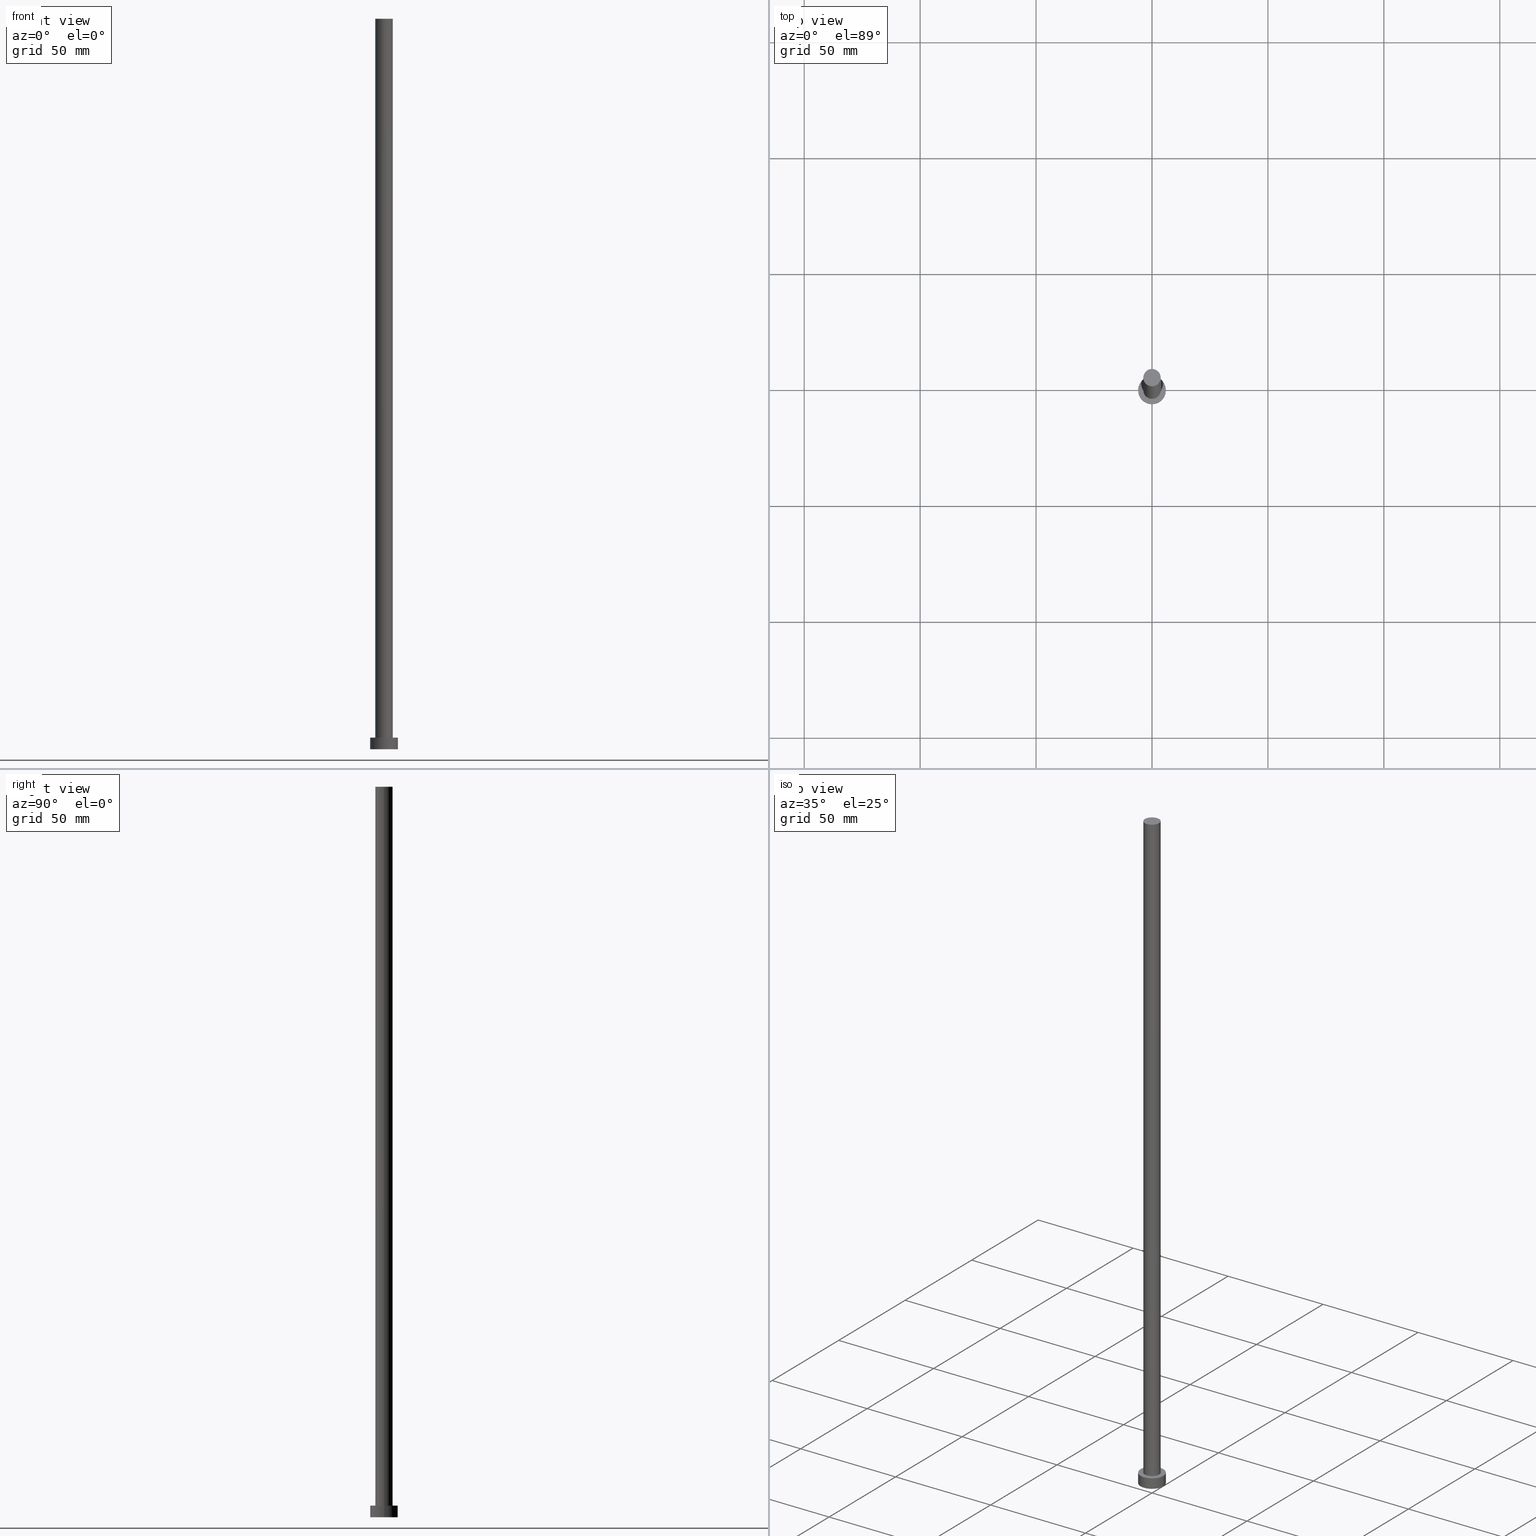
[diagram: canonical four-view strip — front | top / right | iso, engineering-drawing reading convention]
A machine part, canonical four-view strip (front | top / right | iso — engineering-drawing reading convention). The complete STEP part file that produces these views, byte-faithful:
ISO-10303-21;
HEADER;
FILE_DESCRIPTION (( 'STEP AP203' ),
    '1' );
FILE_NAME ('ec3e.STEP',
    '2023-02-12T11:56:48',
    ( '' ),
    ( '' ),
    'SwSTEP 2.0',
    'SolidWorks 2019',
    '' );
FILE_SCHEMA (( 'CONFIG_CONTROL_DESIGN' ));
ENDSEC;

DATA;
#1 = ORIENTED_EDGE ( 'NONE', *, *, #79, .F. ) ;
#2 = AXIS2_PLACEMENT_3D ( 'NONE', #172, #11, #174 ) ;
#3 = ORIENTED_EDGE ( 'NONE', *, *, #195, .F. ) ;
#4 = ORIENTED_EDGE ( 'NONE', *, *, #26, .T. ) ;
#5 = PERSON_AND_ORGANIZATION_ROLE ( 'classification_officer' ) ;
#6 = EDGE_LOOP ( 'NONE', ( #242, #78, #237, #182 ) ) ;
#7 = CC_DESIGN_APPROVAL ( #193, ( #67 ) ) ;
#8 = CALENDAR_DATE ( 2023, 12, 2 ) ;
#9 = CARTESIAN_POINT ( 'NONE',  ( -6.000000000000000888, 0.000000000000000000, 5.000000000000000000 ) ) ;
#10 = DATE_AND_TIME ( #8, #12 ) ;
#11 = DIRECTION ( 'NONE',  ( 0.000000000000000000, 0.000000000000000000, 1.000000000000000000 ) ) ;
#12 = LOCAL_TIME ( 12, 56, 48.00000000000000000, #111 ) ;
#13 = FACE_OUTER_BOUND ( 'NONE', #73, .T. ) ;
#14 = CC_DESIGN_PERSON_AND_ORGANIZATION_ASSIGNMENT ( #25, #202, ( #67 ) ) ;
#15 = DIRECTION ( 'NONE',  ( 0.000000000000000000, 0.000000000000000000, 1.000000000000000000 ) ) ;
#16 = ORIENTED_EDGE ( 'NONE', *, *, #195, .T. ) ;
#17 = ADVANCED_FACE ( 'NONE', ( #60 ), #86, .T. ) ;
#18 = AXIS2_PLACEMENT_3D ( 'NONE', #185, #166, #198 ) ;
#19 = VERTEX_POINT ( 'NONE', #63 ) ;
#20 = ORIENTED_EDGE ( 'NONE', *, *, #70, .T. ) ;
#21 = CC_DESIGN_DATE_AND_TIME_ASSIGNMENT ( #31, #47, ( #67 ) ) ;
#22 = LOCAL_TIME ( 12, 56, 48.00000000000000000, #101 ) ;
#23 = PERSON_AND_ORGANIZATION ( #121, #53 ) ;
#24 = VERTEX_POINT ( 'NONE', #125 ) ;
#25 = PERSON_AND_ORGANIZATION ( #121, #53 ) ;
#26 = EDGE_CURVE ( 'NONE', #159, #227, #95, .T. ) ;
#27 = DIRECTION ( 'NONE',  ( 0.000000000000000000, 0.000000000000000000, 1.000000000000000000 ) ) ;
#28 = CC_DESIGN_SECURITY_CLASSIFICATION ( #71, ( #100 ) ) ;
#29 = DATE_AND_TIME ( #126, #127 ) ;
#30 = DIRECTION ( 'NONE',  ( 0.000000000000000000, 0.000000000000000000, 1.000000000000000000 ) ) ;
#31 = DATE_AND_TIME ( #142, #22 ) ;
#32 = DIRECTION ( 'NONE',  ( 1.000000000000000000, 0.000000000000000000, -0.000000000000000000 ) ) ;
#33 = APPROVAL_DATE_TIME ( #224, #133 ) ;
#34 = FACE_BOUND ( 'NONE', #118, .T. ) ;
#35 = FACE_OUTER_BOUND ( 'NONE', #56, .T. ) ;
#36 = APPROVAL ( #61, 'NEUR�EN�' ) ;
#37 = EDGE_LOOP ( 'NONE', ( #211, #137, #141, #42 ) ) ;
#38 = ORIENTED_EDGE ( 'NONE', *, *, #116, .T. ) ;
#39 = MANIFOLD_SOLID_BREP ( 'P�idat vysunut�m3', #51 ) ;
#40 = ORIENTED_EDGE ( 'NONE', *, *, #219, .F. ) ;
#41 = COORDINATED_UNIVERSAL_TIME_OFFSET ( 1, 0, .AHEAD. ) ;
#42 = ORIENTED_EDGE ( 'NONE', *, *, #116, .F. ) ;
#43 = AXIS2_PLACEMENT_3D ( 'NONE', #52, #147, #221 ) ;
#44 = APPROVAL_DATE_TIME ( #10, #36 ) ;
#45 = DIRECTION ( 'NONE',  ( 0.000000000000000000, 0.000000000000000000, 1.000000000000000000 ) ) ;
#46 = LOCAL_TIME ( 12, 56, 48.00000000000000000, #115 ) ;
#47 = DATE_TIME_ROLE ( 'creation_date' ) ;
#48 = CARTESIAN_POINT ( 'NONE',  ( 0.000000000000000000, 0.000000000000000000, 315.0000000000000000 ) ) ;
#49 = CC_DESIGN_PERSON_AND_ORGANIZATION_ASSIGNMENT ( #247, #106, ( #100 ) ) ;
#50 = CARTESIAN_POINT ( 'NONE',  ( 0.000000000000000000, 0.000000000000000000, 5.000000000000000000 ) ) ;
#51 = CLOSED_SHELL ( 'NONE', ( #226, #17, #254, #114, #160, #98, #203 ) ) ;
#52 = CARTESIAN_POINT ( 'NONE',  ( 0.000000000000000000, 0.000000000000000000, 5.000000000000000000 ) ) ;
#53 = ORGANIZATION ( 'NEUR�EN�', 'NEUR�EN�', '' ) ;
#54 = CYLINDRICAL_SURFACE ( 'NONE', #167, 3.750000000000000000 ) ;
#55 = EDGE_CURVE ( 'NONE', #19, #24, #80, .T. ) ;
#56 = EDGE_LOOP ( 'NONE', ( #104, #212, #162, #122 ) ) ;
#57 = CARTESIAN_POINT ( 'NONE',  ( -3.750000000000000000, 0.000000000000000000, 5.000000000000000000 ) ) ;
#58 = VERTEX_POINT ( 'NONE', #92 ) ;
#59 = CIRCLE ( 'NONE', #170, 3.750000000000000000 ) ;
#60 = FACE_OUTER_BOUND ( 'NONE', #6, .T. ) ;
#61 = APPROVAL_STATUS ( 'not_yet_approved' ) ;
#62 = EDGE_CURVE ( 'NONE', #178, #19, #68, .T. ) ;
#63 = CARTESIAN_POINT ( 'NONE',  ( 6.000000000000000888, 7.347880794884120722E-16, 5.000000000000000000 ) ) ;
#64 = CARTESIAN_POINT ( 'NONE',  ( 0.000000000000000000, 0.000000000000000000, 0.000000000000000000 ) ) ;
#65 = PLANE ( 'NONE',  #43 ) ;
#66 = CC_DESIGN_APPROVAL ( #133, ( #71 ) ) ;
#67 = PRODUCT_DEFINITION ( 'NEZN�M�', '', #100, #72 ) ;
#68 = CIRCLE ( 'NONE', #103, 6.000000000000000888 ) ;
#69 = AXIS2_PLACEMENT_3D ( 'NONE', #64, #130, #32 ) ;
#70 = EDGE_CURVE ( 'NONE', #19, #178, #252, .T. ) ;
#71 = SECURITY_CLASSIFICATION ( '', '', #139 ) ;
#72 = DESIGN_CONTEXT ( 'detailed design', #210, 'design' ) ;
#73 = EDGE_LOOP ( 'NONE', ( #82, #1 ) ) ;
#74 = DIRECTION ( 'NONE',  ( 1.000000000000000000, 0.000000000000000000, 0.000000000000000000 ) ) ;
#75 = DIRECTION ( 'NONE',  ( 0.000000000000000000, 0.000000000000000000, 1.000000000000000000 ) ) ;
#76 = CIRCLE ( 'NONE', #243, 3.750000000000000000 ) ;
#77 = ORIENTED_EDGE ( 'NONE', *, *, #149, .T. ) ;
#78 = ORIENTED_EDGE ( 'NONE', *, *, #55, .T. ) ;
#79 = EDGE_CURVE ( 'NONE', #24, #84, #138, .T. ) ;
#80 = LINE ( 'NONE', #155, #214 ) ;
#81 = DIRECTION ( 'NONE',  ( 0.000000000000000000, 0.000000000000000000, 1.000000000000000000 ) ) ;
#82 = ORIENTED_EDGE ( 'NONE', *, *, #232, .F. ) ;
#83 =( NAMED_UNIT ( * ) SI_UNIT ( $, .STERADIAN. ) SOLID_ANGLE_UNIT ( ) );
#84 = VERTEX_POINT ( 'NONE', #223 ) ;
#85 = COORDINATED_UNIVERSAL_TIME_OFFSET ( 1, 0, .AHEAD. ) ;
#86 = CYLINDRICAL_SURFACE ( 'NONE', #233, 6.000000000000000888 ) ;
#87 = DIRECTION ( 'NONE',  ( -0.000000000000000000, -0.000000000000000000, -1.000000000000000000 ) ) ;
#88 = DATE_AND_TIME ( #241, #175 ) ;
#89 = EDGE_CURVE ( 'NONE', #178, #84, #108, .T. ) ;
#90 = FACE_OUTER_BOUND ( 'NONE', #120, .T. ) ;
#91 = PERSON_AND_ORGANIZATION ( #121, #53 ) ;
#92 = CARTESIAN_POINT ( 'NONE',  ( 3.750000000000000000, 4.592425496802573972E-16, 5.000000000000000000 ) ) ;
#93 = AXIS2_PLACEMENT_3D ( 'NONE', #181, #81, #179 ) ;
#94 = CARTESIAN_POINT ( 'NONE',  ( 0.000000000000000000, 0.000000000000000000, 315.0000000000000000 ) ) ;
#95 = CIRCLE ( 'NONE', #177, 3.750000000000000000 ) ;
#96 = DIRECTION ( 'NONE',  ( 0.000000000000000000, 0.000000000000000000, 1.000000000000000000 ) ) ;
#97 = CARTESIAN_POINT ( 'NONE',  ( -3.750000000000000000, 0.000000000000000000, 315.0000000000000000 ) ) ;
#98 = ADVANCED_FACE ( 'NONE', ( #190 ), #228, .T. ) ;
#99 = DIRECTION ( 'NONE',  ( -1.000000000000000000, 0.000000000000000000, 0.000000000000000000 ) ) ;
#100 = PRODUCT_DEFINITION_FORMATION_WITH_SPECIFIED_SOURCE ( 'LIBOVOLN�', '', #105, .NOT_KNOWN. ) ;
#101 = COORDINATED_UNIVERSAL_TIME_OFFSET ( 1, 0, .AHEAD. ) ;
#102 = DIRECTION ( 'NONE',  ( -0.000000000000000000, -0.000000000000000000, -1.000000000000000000 ) ) ;
#103 = AXIS2_PLACEMENT_3D ( 'NONE', #132, #246, #152 ) ;
#104 = ORIENTED_EDGE ( 'NONE', *, *, #55, .F. ) ;
#105 = PRODUCT ( 'ec3e', 'ec3e', '', ( #220 ) ) ;
#106 = PERSON_AND_ORGANIZATION_ROLE ( 'design_supplier' ) ;
#107 = APPROVAL_PERSON_ORGANIZATION ( #205, #133, #150 ) ;
#108 = LINE ( 'NONE', #9, #163 ) ;
#109 = PERSON_AND_ORGANIZATION_ROLE ( 'design_owner' ) ;
#110 = DIRECTION ( 'NONE',  ( 1.000000000000000000, 0.000000000000000000, 0.000000000000000000 ) ) ;
#111 = COORDINATED_UNIVERSAL_TIME_OFFSET ( 1, 0, .AHEAD. ) ;
#112 = DIRECTION ( 'NONE',  ( -0.000000000000000000, -0.000000000000000000, -1.000000000000000000 ) ) ;
#113 = CARTESIAN_POINT ( 'NONE',  ( -3.750000000000000000, 0.000000000000000000, 315.0000000000000000 ) ) ;
#114 = ADVANCED_FACE ( 'NONE', ( #34, #146 ), #65, .T. ) ;
#115 = COORDINATED_UNIVERSAL_TIME_OFFSET ( 1, 0, .AHEAD. ) ;
#116 = EDGE_CURVE ( 'NONE', #227, #255, #245, .T. ) ;
#117 = CARTESIAN_POINT ( 'NONE',  ( -6.000000000000000888, 0.000000000000000000, 5.000000000000000000 ) ) ;
#118 = EDGE_LOOP ( 'NONE', ( #3, #40 ) ) ;
#119 = EDGE_LOOP ( 'NONE', ( #239, #197, #38, #16 ) ) ;
#120 = EDGE_LOOP ( 'NONE', ( #77, #4 ) ) ;
#121 = PERSON ( 'NEUR�EN�', 'NEUR�EN�', 'NEUR�EN�', ('NEUR�EN�'), ('NEUR�EN�'), ('NEUR�EN�') ) ;
#122 = ORIENTED_EDGE ( 'NONE', *, *, #232, .T. ) ;
#123 = APPROVAL_ROLE ( '' ) ;
#124 = AXIS2_PLACEMENT_3D ( 'NONE', #186, #30, #209 ) ;
#125 = CARTESIAN_POINT ( 'NONE',  ( 6.000000000000000888, 7.347880794884120722E-16, 0.000000000000000000 ) ) ;
#126 = CALENDAR_DATE ( 2023, 12, 2 ) ;
#127 = LOCAL_TIME ( 12, 56, 48.00000000000000000, #85 ) ;
#128 = APPROVAL_STATUS ( 'not_yet_approved' ) ;
#129 = UNCERTAINTY_MEASURE_WITH_UNIT (LENGTH_MEASURE( 1.000000000000000082E-05 ), #136, 'distance_accuracy_value', 'NONE');
#130 = DIRECTION ( 'NONE',  ( 0.000000000000000000, 0.000000000000000000, 1.000000000000000000 ) ) ;
#131 =( GEOMETRIC_REPRESENTATION_CONTEXT ( 3 ) GLOBAL_UNCERTAINTY_ASSIGNED_CONTEXT ( ( #129 ) ) GLOBAL_UNIT_ASSIGNED_CONTEXT ( ( #136, #134, #83 ) ) REPRESENTATION_CONTEXT ( 'NONE', 'WORKASPACE' ) );
#132 = CARTESIAN_POINT ( 'NONE',  ( 0.000000000000000000, 0.000000000000000000, 5.000000000000000000 ) ) ;
#133 = APPROVAL ( #206, 'NEUR�EN�' ) ;
#134 =( NAMED_UNIT ( * ) PLANE_ANGLE_UNIT ( ) SI_UNIT ( $, .RADIAN. ) );
#135 = CIRCLE ( 'NONE', #2, 3.750000000000000000 ) ;
#136 =( LENGTH_UNIT ( ) NAMED_UNIT ( * ) SI_UNIT ( .MILLI., .METRE. ) );
#137 = ORIENTED_EDGE ( 'NONE', *, *, #173, .T. ) ;
#138 = CIRCLE ( 'NONE', #124, 6.000000000000000888 ) ;
#139 = SECURITY_CLASSIFICATION_LEVEL ( 'unclassified' ) ;
#140 = VECTOR ( 'NONE', #112, 1000.000000000000000 ) ;
#141 = ORIENTED_EDGE ( 'NONE', *, *, #219, .T. ) ;
#142 = CALENDAR_DATE ( 2023, 12, 2 ) ;
#143 = CC_DESIGN_PERSON_AND_ORGANIZATION_ASSIGNMENT ( #215, #5, ( #71 ) ) ;
#144 = PERSON_AND_ORGANIZATION ( #121, #53 ) ;
#145 = LINE ( 'NONE', #250, #140 ) ;
#146 = FACE_OUTER_BOUND ( 'NONE', #184, .T. ) ;
#147 = DIRECTION ( 'NONE',  ( 0.000000000000000000, 0.000000000000000000, 1.000000000000000000 ) ) ;
#148 = SHAPE_DEFINITION_REPRESENTATION ( #191, #158 ) ;
#149 = EDGE_CURVE ( 'NONE', #227, #159, #59, .T. ) ;
#150 = APPROVAL_ROLE ( '' ) ;
#151 = PRODUCT_RELATED_PRODUCT_CATEGORY ( 'detail', '', ( #105 ) ) ;
#152 = DIRECTION ( 'NONE',  ( 1.000000000000000000, 0.000000000000000000, 0.000000000000000000 ) ) ;
#153 = DIRECTION ( 'NONE',  ( 1.000000000000000000, 0.000000000000000000, 0.000000000000000000 ) ) ;
#154 = APPROVAL_PERSON_ORGANIZATION ( #217, #36, #123 ) ;
#155 = CARTESIAN_POINT ( 'NONE',  ( 6.000000000000000888, 7.347880794884120722E-16, 5.000000000000000000 ) ) ;
#156 = AXIS2_PLACEMENT_3D ( 'NONE', #238, #157, #236 ) ;
#157 = DIRECTION ( 'NONE',  ( -0.000000000000000000, -0.000000000000000000, -1.000000000000000000 ) ) ;
#158 = ADVANCED_BREP_SHAPE_REPRESENTATION ( 'ec3e', ( #39, #18 ), #131 ) ;
#159 = VERTEX_POINT ( 'NONE', #192 ) ;
#160 = ADVANCED_FACE ( 'NONE', ( #13 ), #188, .F. ) ;
#161 = APPLICATION_CONTEXT ( 'configuration controlled 3d designs of mechanical parts and assemblies' ) ;
#162 = ORIENTED_EDGE ( 'NONE', *, *, #89, .T. ) ;
#163 = VECTOR ( 'NONE', #249, 1000.000000000000000 ) ;
#164 = APPLICATION_PROTOCOL_DEFINITION ( 'international standard', 'config_control_design', 1994, #161 ) ;
#165 = ORIENTED_EDGE ( 'NONE', *, *, #62, .T. ) ;
#166 = DIRECTION ( 'NONE',  ( 0.000000000000000000, 0.000000000000000000, 1.000000000000000000 ) ) ;
#167 = AXIS2_PLACEMENT_3D ( 'NONE', #218, #231, #99 ) ;
#168 = CARTESIAN_POINT ( 'NONE',  ( 0.000000000000000000, 0.000000000000000000, 5.000000000000000000 ) ) ;
#169 = DIRECTION ( 'NONE',  ( -0.000000000000000000, -0.000000000000000000, -1.000000000000000000 ) ) ;
#170 = AXIS2_PLACEMENT_3D ( 'NONE', #48, #15, #110 ) ;
#171 = PERSON_AND_ORGANIZATION_ROLE ( 'creator' ) ;
#172 = CARTESIAN_POINT ( 'NONE',  ( 0.000000000000000000, 0.000000000000000000, 5.000000000000000000 ) ) ;
#173 = EDGE_CURVE ( 'NONE', #159, #58, #145, .T. ) ;
#174 = DIRECTION ( 'NONE',  ( 1.000000000000000000, 0.000000000000000000, 0.000000000000000000 ) ) ;
#175 = LOCAL_TIME ( 12, 56, 48.00000000000000000, #41 ) ;
#176 = CARTESIAN_POINT ( 'NONE',  ( 0.000000000000000000, 0.000000000000000000, 315.0000000000000000 ) ) ;
#177 = AXIS2_PLACEMENT_3D ( 'NONE', #201, #27, #180 ) ;
#178 = VERTEX_POINT ( 'NONE', #117 ) ;
#179 = DIRECTION ( 'NONE',  ( 1.000000000000000000, 0.000000000000000000, 0.000000000000000000 ) ) ;
#180 = DIRECTION ( 'NONE',  ( 1.000000000000000000, 0.000000000000000000, 0.000000000000000000 ) ) ;
#181 = CARTESIAN_POINT ( 'NONE',  ( 0.000000000000000000, 0.000000000000000000, 0.000000000000000000 ) ) ;
#182 = ORIENTED_EDGE ( 'NONE', *, *, #89, .F. ) ;
#183 = CC_DESIGN_PERSON_AND_ORGANIZATION_ASSIGNMENT ( #91, #171, ( #100 ) ) ;
#184 = EDGE_LOOP ( 'NONE', ( #165, #20 ) ) ;
#185 = CARTESIAN_POINT ( 'NONE',  ( 0.000000000000000000, 0.000000000000000000, 0.000000000000000000 ) ) ;
#186 = CARTESIAN_POINT ( 'NONE',  ( 0.000000000000000000, 0.000000000000000000, 0.000000000000000000 ) ) ;
#187 = APPROVAL_DATE_TIME ( #88, #193 ) ;
#188 = PLANE ( 'NONE',  #69 ) ;
#189 = CC_DESIGN_DATE_AND_TIME_ASSIGNMENT ( #29, #200, ( #71 ) ) ;
#190 = FACE_OUTER_BOUND ( 'NONE', #119, .T. ) ;
#191 = PRODUCT_DEFINITION_SHAPE ( 'NONE', 'NONE',  #67 ) ;
#192 = CARTESIAN_POINT ( 'NONE',  ( 3.750000000000000000, 4.592425496802573972E-16, 315.0000000000000000 ) ) ;
#193 = APPROVAL ( #128, 'NEUR�EN�' ) ;
#194 = PLANE ( 'NONE',  #253 ) ;
#195 = EDGE_CURVE ( 'NONE', #255, #58, #135, .T. ) ;
#196 = AXIS2_PLACEMENT_3D ( 'NONE', #94, #87, #207 ) ;
#197 = ORIENTED_EDGE ( 'NONE', *, *, #149, .F. ) ;
#198 = DIRECTION ( 'NONE',  ( 1.000000000000000000, 0.000000000000000000, 0.000000000000000000 ) ) ;
#199 = APPROVAL_ROLE ( '' ) ;
#200 = DATE_TIME_ROLE ( 'classification_date' ) ;
#201 = CARTESIAN_POINT ( 'NONE',  ( 0.000000000000000000, 0.000000000000000000, 315.0000000000000000 ) ) ;
#202 = PERSON_AND_ORGANIZATION_ROLE ( 'creator' ) ;
#203 = ADVANCED_FACE ( 'NONE', ( #90 ), #194, .T. ) ;
#204 = DIRECTION ( 'NONE',  ( 1.000000000000000000, 0.000000000000000000, -0.000000000000000000 ) ) ;
#205 = PERSON_AND_ORGANIZATION ( #121, #53 ) ;
#206 = APPROVAL_STATUS ( 'not_yet_approved' ) ;
#207 = DIRECTION ( 'NONE',  ( -1.000000000000000000, 0.000000000000000000, 0.000000000000000000 ) ) ;
#208 = CC_DESIGN_PERSON_AND_ORGANIZATION_ASSIGNMENT ( #23, #109, ( #105 ) ) ;
#209 = DIRECTION ( 'NONE',  ( 1.000000000000000000, 0.000000000000000000, 0.000000000000000000 ) ) ;
#210 = APPLICATION_CONTEXT ( 'configuration controlled 3d designs of mechanical parts and assemblies' ) ;
#211 = ORIENTED_EDGE ( 'NONE', *, *, #26, .F. ) ;
#212 = ORIENTED_EDGE ( 'NONE', *, *, #62, .F. ) ;
#213 = CIRCLE ( 'NONE', #93, 6.000000000000000888 ) ;
#214 = VECTOR ( 'NONE', #235, 1000.000000000000000 ) ;
#215 = PERSON_AND_ORGANIZATION ( #121, #53 ) ;
#216 = APPLICATION_PROTOCOL_DEFINITION ( 'international standard', 'config_control_design', 1994, #210 ) ;
#217 = PERSON_AND_ORGANIZATION ( #121, #53 ) ;
#218 = CARTESIAN_POINT ( 'NONE',  ( 0.000000000000000000, 0.000000000000000000, 315.0000000000000000 ) ) ;
#219 = EDGE_CURVE ( 'NONE', #58, #255, #76, .T. ) ;
#220 = MECHANICAL_CONTEXT ( 'NONE', #161, 'mechanical' ) ;
#221 = DIRECTION ( 'NONE',  ( 1.000000000000000000, 0.000000000000000000, -0.000000000000000000 ) ) ;
#222 = CALENDAR_DATE ( 2023, 12, 2 ) ;
#223 = CARTESIAN_POINT ( 'NONE',  ( -6.000000000000000888, 0.000000000000000000, 0.000000000000000000 ) ) ;
#224 = DATE_AND_TIME ( #222, #46 ) ;
#225 = VECTOR ( 'NONE', #169, 1000.000000000000000 ) ;
#226 = ADVANCED_FACE ( 'NONE', ( #229 ), #54, .T. ) ;
#227 = VERTEX_POINT ( 'NONE', #97 ) ;
#228 = CYLINDRICAL_SURFACE ( 'NONE', #196, 3.750000000000000000 ) ;
#229 = FACE_OUTER_BOUND ( 'NONE', #37, .T. ) ;
#230 = APPROVAL_PERSON_ORGANIZATION ( #144, #193, #199 ) ;
#231 = DIRECTION ( 'NONE',  ( -0.000000000000000000, -0.000000000000000000, -1.000000000000000000 ) ) ;
#232 = EDGE_CURVE ( 'NONE', #84, #24, #213, .T. ) ;
#233 = AXIS2_PLACEMENT_3D ( 'NONE', #168, #102, #244 ) ;
#234 = CYLINDRICAL_SURFACE ( 'NONE', #156, 6.000000000000000888 ) ;
#235 = DIRECTION ( 'NONE',  ( -0.000000000000000000, -0.000000000000000000, -1.000000000000000000 ) ) ;
#236 = DIRECTION ( 'NONE',  ( -1.000000000000000000, 0.000000000000000000, 0.000000000000000000 ) ) ;
#237 = ORIENTED_EDGE ( 'NONE', *, *, #79, .T. ) ;
#238 = CARTESIAN_POINT ( 'NONE',  ( 0.000000000000000000, 0.000000000000000000, 5.000000000000000000 ) ) ;
#239 = ORIENTED_EDGE ( 'NONE', *, *, #173, .F. ) ;
#240 = AXIS2_PLACEMENT_3D ( 'NONE', #50, #45, #74 ) ;
#241 = CALENDAR_DATE ( 2023, 12, 2 ) ;
#242 = ORIENTED_EDGE ( 'NONE', *, *, #70, .F. ) ;
#243 = AXIS2_PLACEMENT_3D ( 'NONE', #251, #75, #153 ) ;
#244 = DIRECTION ( 'NONE',  ( -1.000000000000000000, 0.000000000000000000, 0.000000000000000000 ) ) ;
#245 = LINE ( 'NONE', #113, #225 ) ;
#246 = DIRECTION ( 'NONE',  ( 0.000000000000000000, 0.000000000000000000, 1.000000000000000000 ) ) ;
#247 = PERSON_AND_ORGANIZATION ( #121, #53 ) ;
#248 = CC_DESIGN_APPROVAL ( #36, ( #100 ) ) ;
#249 = DIRECTION ( 'NONE',  ( -0.000000000000000000, -0.000000000000000000, -1.000000000000000000 ) ) ;
#250 = CARTESIAN_POINT ( 'NONE',  ( 3.750000000000000000, 4.592425496802573972E-16, 315.0000000000000000 ) ) ;
#251 = CARTESIAN_POINT ( 'NONE',  ( 0.000000000000000000, 0.000000000000000000, 5.000000000000000000 ) ) ;
#252 = CIRCLE ( 'NONE', #240, 6.000000000000000888 ) ;
#253 = AXIS2_PLACEMENT_3D ( 'NONE', #176, #96, #204 ) ;
#254 = ADVANCED_FACE ( 'NONE', ( #35 ), #234, .T. ) ;
#255 = VERTEX_POINT ( 'NONE', #57 ) ;
ENDSEC;
END-ISO-10303-21;
